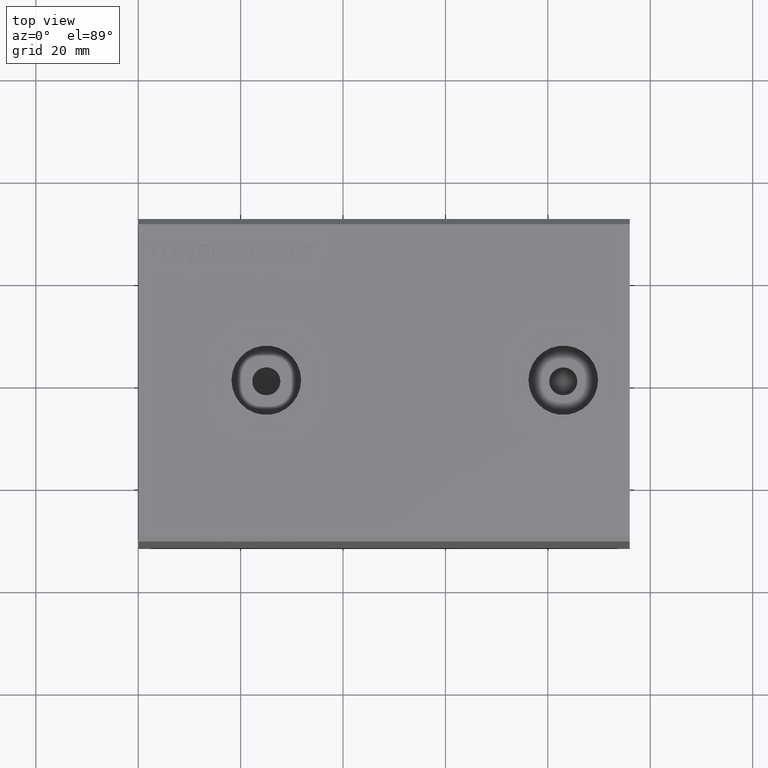
[diagram: clean part render]
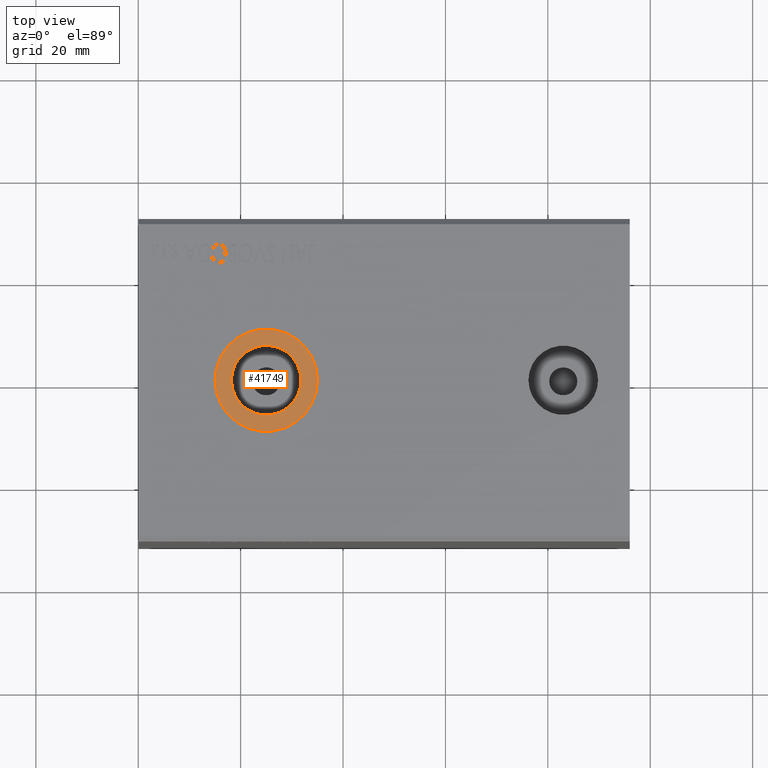
[diagram: same view with one face highlighted and labeled with its STEP entity id]
A machine part, top view. The second image highlights one B-rep face of the part: STEP entity #41749.
In plain terms, the highlighted planar face has unit normal (0, 0, 1).
Its self-contained STEP definition (entity closure, byte-faithful):
#223 = DIRECTION ( 'NONE',  ( 0.000000000000000000, 0.000000000000000000, 1.000000000000000000 ) ) ;
#4831 = DIRECTION ( 'NONE',  ( 1.000000000000000000, 0.000000000000000000, 0.000000000000000000 ) ) ;
#7109 = PLANE ( 'NONE',  #28732 ) ;
#9270 = CARTESIAN_POINT ( 'NONE',  ( 18.19999999999999929, 1.700121561408603067E-15, 42.39999999999999147 ) ) ;
#12267 = AXIS2_PLACEMENT_3D ( 'NONE', #38034, #27961, #4831 ) ;
#12346 = ORIENTED_EDGE ( 'NONE', *, *, #40480, .F. ) ;
#12547 = DIRECTION ( 'NONE',  ( 0.000000000000000000, 0.000000000000000000, 1.000000000000000000 ) ) ;
#12931 = CIRCLE ( 'NONE', #12267, 6.800000000000000711 ) ;
#12983 = ORIENTED_EDGE ( 'NONE', *, *, #29651, .F. ) ;
#13072 = CARTESIAN_POINT ( 'NONE',  ( 25.00000000000000000, 8.673617379884031528E-16, 42.39999999999999147 ) ) ;
#13527 = CARTESIAN_POINT ( 'NONE',  ( 25.00000000000000000, 8.673617379884031528E-16, 42.39999999999999147 ) ) ;
#13551 = EDGE_LOOP ( 'NONE', ( #12983, #12346 ) ) ;
#14926 = EDGE_CURVE ( 'NONE', #27844, #31217, #22058, .T. ) ;
#14974 = DIRECTION ( 'NONE',  ( 1.000000000000000000, 0.000000000000000000, 0.000000000000000000 ) ) ;
#16959 = FACE_OUTER_BOUND ( 'NONE', #29783, .T. ) ;
#17316 = CIRCLE ( 'NONE', #30313, 10.00000000000000178 ) ;
#17462 = CIRCLE ( 'NONE', #41423, 6.800000000000000711 ) ;
#19755 = FACE_BOUND ( 'NONE', #13551, .T. ) ;
#19923 = AXIS2_PLACEMENT_3D ( 'NONE', #13072, #223, #33007 ) ;
#20783 = ORIENTED_EDGE ( 'NONE', *, *, #21299, .T. ) ;
#21299 = EDGE_CURVE ( 'NONE', #31217, #27844, #17316, .T. ) ;
#22058 = CIRCLE ( 'NONE', #19923, 10.00000000000000178 ) ;
#26236 = CARTESIAN_POINT ( 'NONE',  ( 31.80000000000000071, 8.673617379884031528E-16, 42.39999999999999147 ) ) ;
#26583 = CARTESIAN_POINT ( 'NONE',  ( 25.00000000000000000, 8.673617379884031528E-16, 42.39999999999999147 ) ) ;
#26604 = DIRECTION ( 'NONE',  ( 1.000000000000000000, 0.000000000000000000, -0.000000000000000000 ) ) ;
#27844 = VERTEX_POINT ( 'NONE', #31031 ) ;
#27961 = DIRECTION ( 'NONE',  ( 0.000000000000000000, 0.000000000000000000, 1.000000000000000000 ) ) ;
#28732 = AXIS2_PLACEMENT_3D ( 'NONE', #13527, #32828, #26604 ) ;
#29651 = EDGE_CURVE ( 'NONE', #38401, #38608, #17462, .T. ) ;
#29783 = EDGE_LOOP ( 'NONE', ( #41916, #20783 ) ) ;
#30313 = AXIS2_PLACEMENT_3D ( 'NONE', #34478, #12547, #14974 ) ;
#31031 = CARTESIAN_POINT ( 'NONE',  ( 35.00000000000000000, 8.673617379884031528E-16, 42.39999999999999147 ) ) ;
#31217 = VERTEX_POINT ( 'NONE', #35777 ) ;
#32828 = DIRECTION ( 'NONE',  ( 0.000000000000000000, 0.000000000000000000, 1.000000000000000000 ) ) ;
#33007 = DIRECTION ( 'NONE',  ( 1.000000000000000000, 0.000000000000000000, 0.000000000000000000 ) ) ;
#34478 = CARTESIAN_POINT ( 'NONE',  ( 25.00000000000000000, 8.673617379884031528E-16, 42.39999999999999147 ) ) ;
#35777 = CARTESIAN_POINT ( 'NONE',  ( 15.00000000000000178, 2.092008537135756212E-15, 42.39999999999999147 ) ) ;
#36444 = DIRECTION ( 'NONE',  ( 1.000000000000000000, 0.000000000000000000, 0.000000000000000000 ) ) ;
#38034 = CARTESIAN_POINT ( 'NONE',  ( 25.00000000000000000, 8.673617379884031528E-16, 42.39999999999999147 ) ) ;
#38401 = VERTEX_POINT ( 'NONE', #26236 ) ;
#38608 = VERTEX_POINT ( 'NONE', #9270 ) ;
#39659 = DIRECTION ( 'NONE',  ( 0.000000000000000000, 0.000000000000000000, 1.000000000000000000 ) ) ;
#40480 = EDGE_CURVE ( 'NONE', #38608, #38401, #12931, .T. ) ;
#41423 = AXIS2_PLACEMENT_3D ( 'NONE', #26583, #39659, #36444 ) ;
#41749 = ADVANCED_FACE ( 'NONE', ( #19755, #16959 ), #7109, .T. ) ;
#41916 = ORIENTED_EDGE ( 'NONE', *, *, #14926, .T. ) ;